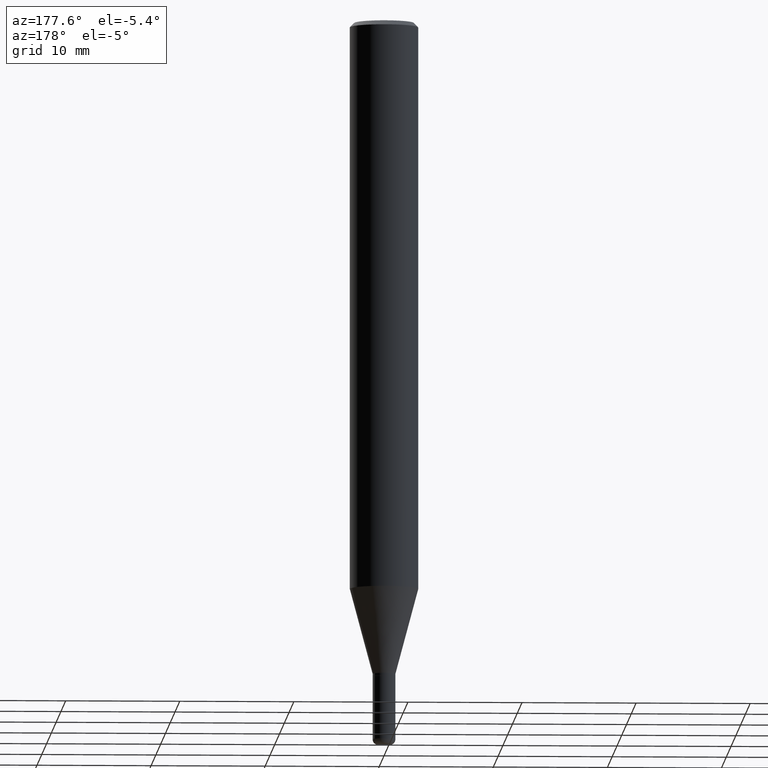
[diagram: clean part render]
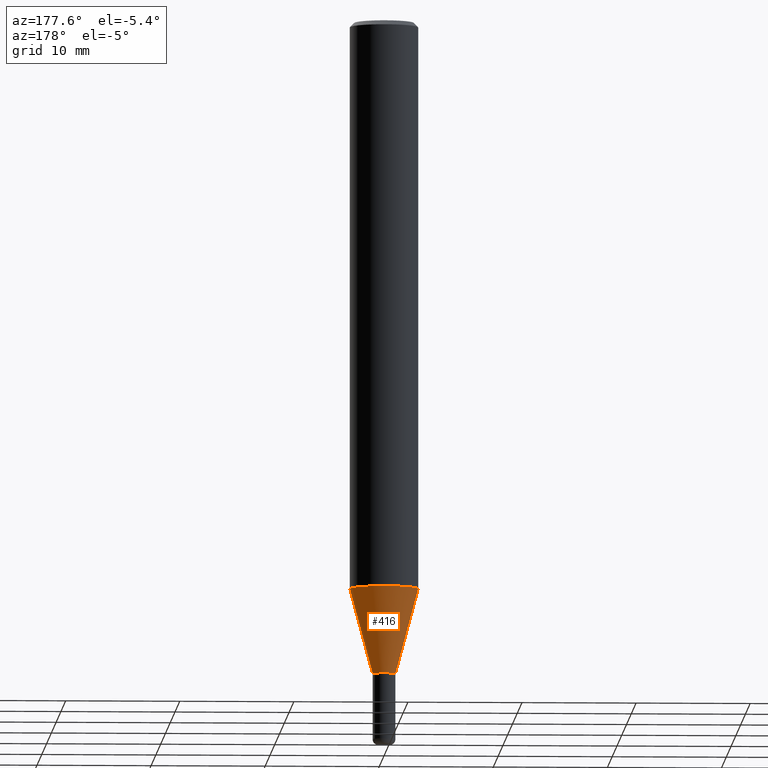
[diagram: same view with one face highlighted and labeled with its STEP entity id]
A machine part, auxiliary view. The second image highlights one B-rep face of the part: STEP entity #416.
In plain terms, the highlighted conical surface has half-angle 15 deg.
Its self-contained STEP definition (entity closure, byte-faithful):
#15 = ORIENTED_EDGE ( 'NONE', *, *, #301, .T. ) ;
#17 = DIRECTION ( 'NONE',  ( -2.445468806185136597E-29, 3.491481338843145583E-15, 1.000000000000000000 ) ) ;
#30 = EDGE_LOOP ( 'NONE', ( #15, #291, #403, #41 ) ) ;
#34 = EDGE_CURVE ( 'NONE', #153, #351, #242, .T. ) ;
#39 = AXIS2_PLACEMENT_3D ( 'NONE', #65, #17, #452 ) ;
#41 = ORIENTED_EDGE ( 'NONE', *, *, #66, .F. ) ;
#42 = CARTESIAN_POINT ( 'NONE',  ( 0.1180999999999999966, -7.667645655887934594E-15, -1.959900998903951086 ) ) ;
#48 = CARTESIAN_POINT ( 'NONE',  ( -0.03935000000000003773, -6.796654433841794913E-15, -2.253800000000000026 ) ) ;
#65 = CARTESIAN_POINT ( 'NONE',  ( 5.511597595380061064E-29, -7.869100641484681875E-15, -2.253800000000000026 ) ) ;
#66 = EDGE_CURVE ( 'NONE', #209, #153, #348, .T. ) ;
#75 = CARTESIAN_POINT ( 'NONE',  ( 0.03935000000000003773, -8.143880222851636792E-15, -2.253800000000000026 ) ) ;
#92 = FACE_OUTER_BOUND ( 'NONE', #30, .T. ) ;
#102 = CARTESIAN_POINT ( 'NONE',  ( 5.511597595380061064E-29, -7.869100641484681875E-15, -2.253800000000000026 ) ) ;
#114 = VECTOR ( 'NONE', #515, 39.37007874015748854 ) ;
#144 = VERTEX_POINT ( 'NONE', #48 ) ;
#149 = AXIS2_PLACEMENT_3D ( 'NONE', #102, #500, #271 ) ;
#153 = VERTEX_POINT ( 'NONE', #42 ) ;
#176 = CONICAL_SURFACE ( 'NONE', #39, 0.03935000000000003773, 0.2617993877991494078 ) ;
#182 = DIRECTION ( 'NONE',  ( -0.2588190451025206840, 5.211531920934545520E-15, 0.9659258262890682012 ) ) ;
#209 = VERTEX_POINT ( 'NONE', #430 ) ;
#242 = CIRCLE ( 'NONE', #342, 0.1180999999999999966 ) ;
#262 = CARTESIAN_POINT ( 'NONE',  ( -0.03935000000000003773, -7.589502074963082480E-15, -2.253800000000000026 ) ) ;
#270 = EDGE_CURVE ( 'NONE', #144, #351, #417, .T. ) ;
#271 = DIRECTION ( 'NONE',  ( 1.000000000000000000, -6.982962677686263555E-15, 0.000000000000000000 ) ) ;
#291 = ORIENTED_EDGE ( 'NONE', *, *, #270, .T. ) ;
#301 = EDGE_CURVE ( 'NONE', #209, #144, #455, .T. ) ;
#342 = AXIS2_PLACEMENT_3D ( 'NONE', #460, #344, #502 ) ;
#344 = DIRECTION ( 'NONE',  ( -2.445468806185136597E-29, 3.491481338843145583E-15, 1.000000000000000000 ) ) ;
#348 = LINE ( 'NONE', #75, #114 ) ;
#351 = VERTEX_POINT ( 'NONE', #428 ) ;
#402 = VECTOR ( 'NONE', #182, 39.37007874015748854 ) ;
#403 = ORIENTED_EDGE ( 'NONE', *, *, #34, .F. ) ;
#416 = ADVANCED_FACE ( 'NONE', ( #92 ), #176, .T. ) ;
#417 = LINE ( 'NONE', #262, #402 ) ;
#428 = CARTESIAN_POINT ( 'NONE',  ( -0.1180999999999999966, -6.003806792720507346E-15, -1.959900998903951086 ) ) ;
#430 = CARTESIAN_POINT ( 'NONE',  ( 0.03935000000000003773, -8.143880222851636792E-15, -2.253800000000000026 ) ) ;
#452 = DIRECTION ( 'NONE',  ( 1.000000000000000000, -6.982962677686263555E-15, 0.000000000000000000 ) ) ;
#455 = CIRCLE ( 'NONE', #149, 0.03935000000000003773 ) ;
#460 = CARTESIAN_POINT ( 'NONE',  ( 4.792876756030702270E-29, -6.842957763653185543E-15, -1.959900998903951086 ) ) ;
#500 = DIRECTION ( 'NONE',  ( -2.445468806185136597E-29, 3.491481338843145583E-15, 1.000000000000000000 ) ) ;
#502 = DIRECTION ( 'NONE',  ( 1.000000000000000000, -6.982962677686265133E-15, 0.000000000000000000 ) ) ;
#515 = DIRECTION ( 'NONE',  ( 0.2588190451025206840, 1.565188264969626504E-15, 0.9659258262890682012 ) ) ;